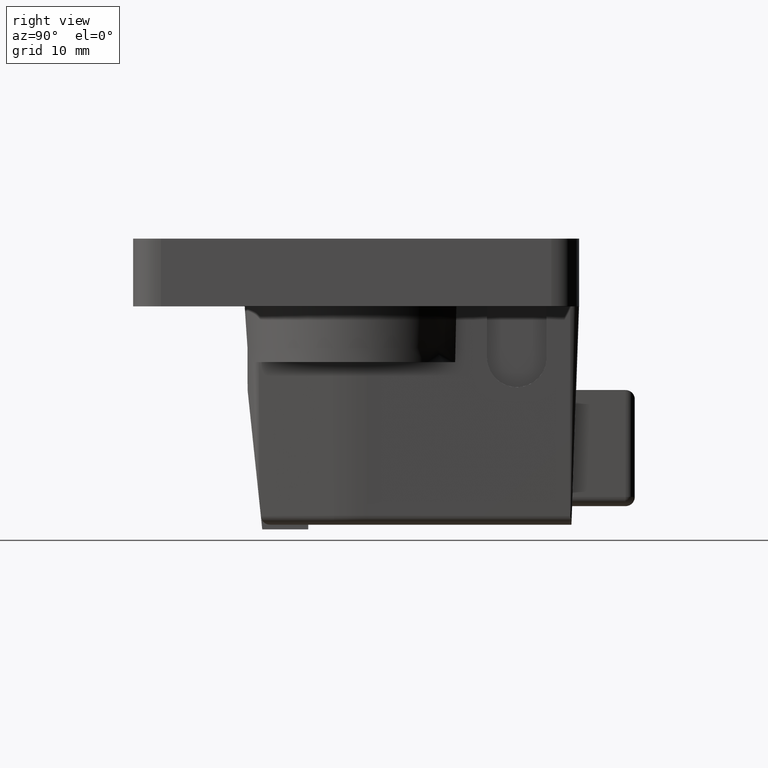
[diagram: clean part render]
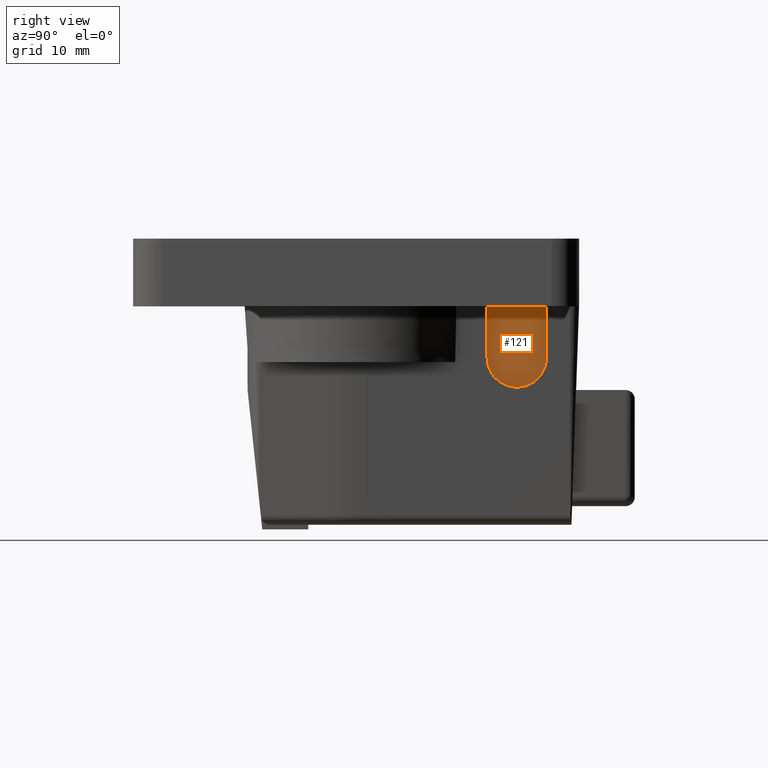
[diagram: same view with one face highlighted and labeled with its STEP entity id]
A machine part, right view. The second image highlights one B-rep face of the part: STEP entity #121.
In plain terms, the highlighted planar face has unit normal (1, 0, 0).
Its self-contained STEP definition (entity closure, byte-faithful):
#67=PLANE('',#1223);
#121=ADVANCED_FACE('',(#206),#67,.T.);
#206=FACE_OUTER_BOUND('',#270,.T.);
#270=EDGE_LOOP('',(#517,#518,#519,#520));
#329=CIRCLE('',#1220,3.19999999999999);
#517=ORIENTED_EDGE('',*,*,#898,.F.);
#518=ORIENTED_EDGE('',*,*,#901,.F.);
#519=ORIENTED_EDGE('',*,*,#903,.F.);
#520=ORIENTED_EDGE('',*,*,#904,.T.);
#767=VERTEX_POINT('',#1868);
#768=VERTEX_POINT('',#1870);
#769=VERTEX_POINT('',#1874);
#770=VERTEX_POINT('',#1878);
#898=EDGE_CURVE('',#767,#768,#1022,.T.);
#901=EDGE_CURVE('',#769,#767,#329,.T.);
#903=EDGE_CURVE('',#770,#769,#1026,.T.);
#904=EDGE_CURVE('',#770,#768,#1027,.T.);
#1022=LINE('',#1869,#1120);
#1026=LINE('',#1879,#1124);
#1027=LINE('',#1881,#1125);
#1120=VECTOR('',#1452,1.);
#1124=VECTOR('',#1462,1.);
#1125=VECTOR('',#1465,1.);
#1220=AXIS2_PLACEMENT_3D('',#1875,#1457,#1458);
#1223=AXIS2_PLACEMENT_3D('',#1882,#1466,#1467);
#1452=DIRECTION('',(0.,0.,1.));
#1457=DIRECTION('',(-1.,0.,0.));
#1458=DIRECTION('',(0.,0.,-1.));
#1462=DIRECTION('',(0.,0.,-1.));
#1465=DIRECTION('',(0.,-1.,0.));
#1466=DIRECTION('',(1.,0.,0.));
#1467=DIRECTION('',(0.,0.,1.));
#1868=CARTESIAN_POINT('',(-157.000000000001,-226.9,-5.50000000000034));
#1869=CARTESIAN_POINT('',(-157.000000000001,-226.9,-3.41060513164848E-013));
#1870=CARTESIAN_POINT('',(-157.000000000001,-226.9,-3.41060513164848E-013));
#1874=CARTESIAN_POINT('',(-157.000000000001,-220.5,-5.50000000000034));
#1875=CARTESIAN_POINT('',(-157.000000000001,-223.7,-5.50000000000034));
#1878=CARTESIAN_POINT('',(-157.000000000001,-220.5,-3.40005801291454E-013));
#1879=CARTESIAN_POINT('',(-157.000000000001,-220.5,-5.50000000000034));
#1881=CARTESIAN_POINT('',(-157.000000000001,-220.5,-3.41060513164848E-013));
#1882=CARTESIAN_POINT('',(-157.000000000001,-223.7,-5.50000000000034));